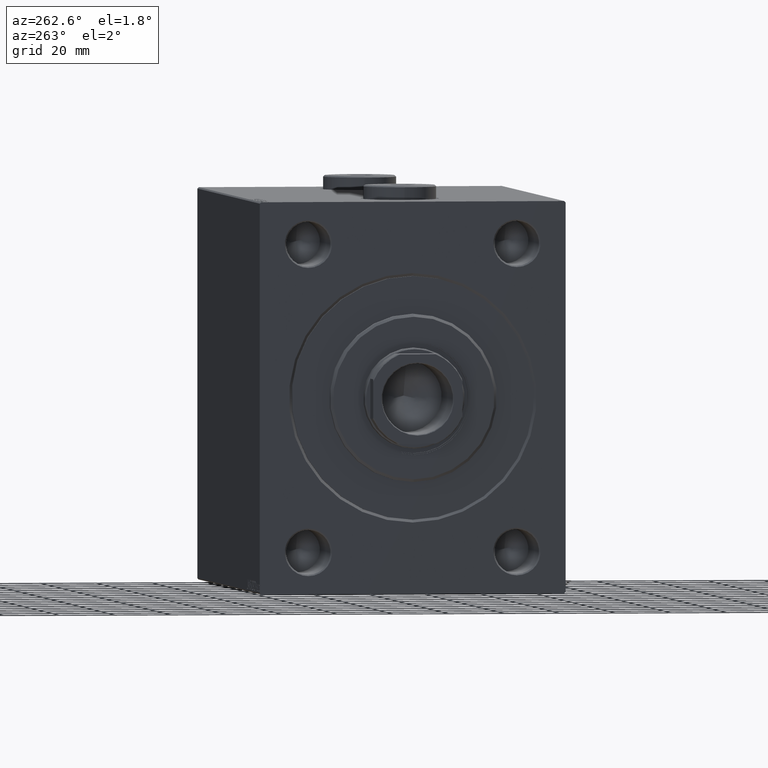
[diagram: clean part render]
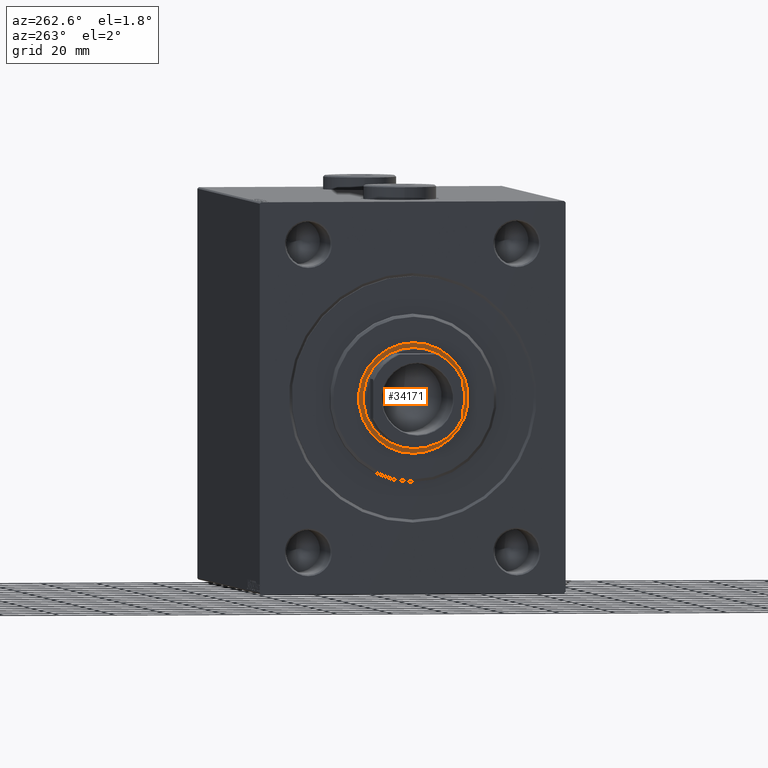
[diagram: same view with one face highlighted and labeled with its STEP entity id]
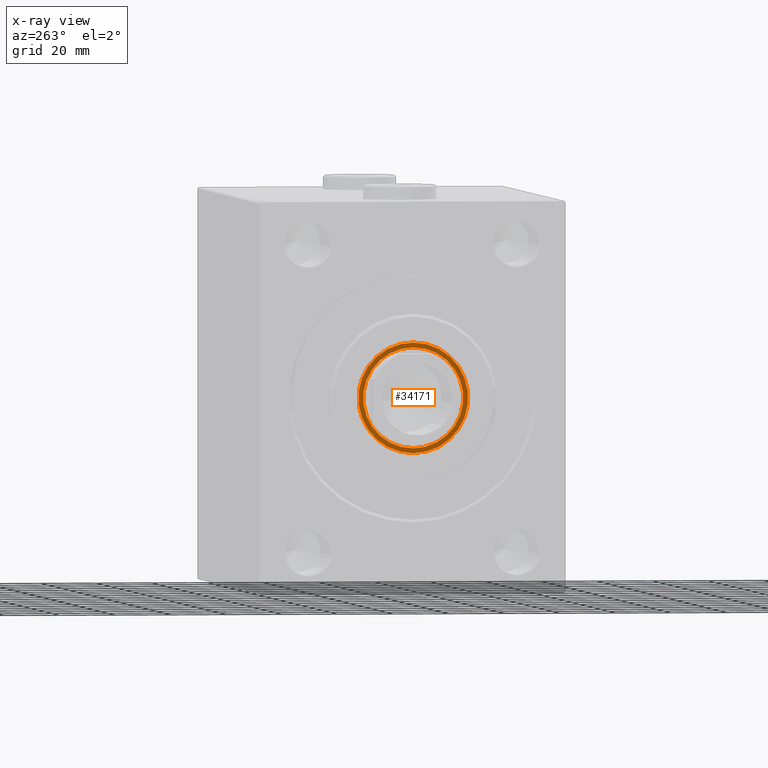
[diagram: x-ray of the same camera — body ghosted, the highlighted face saturated]
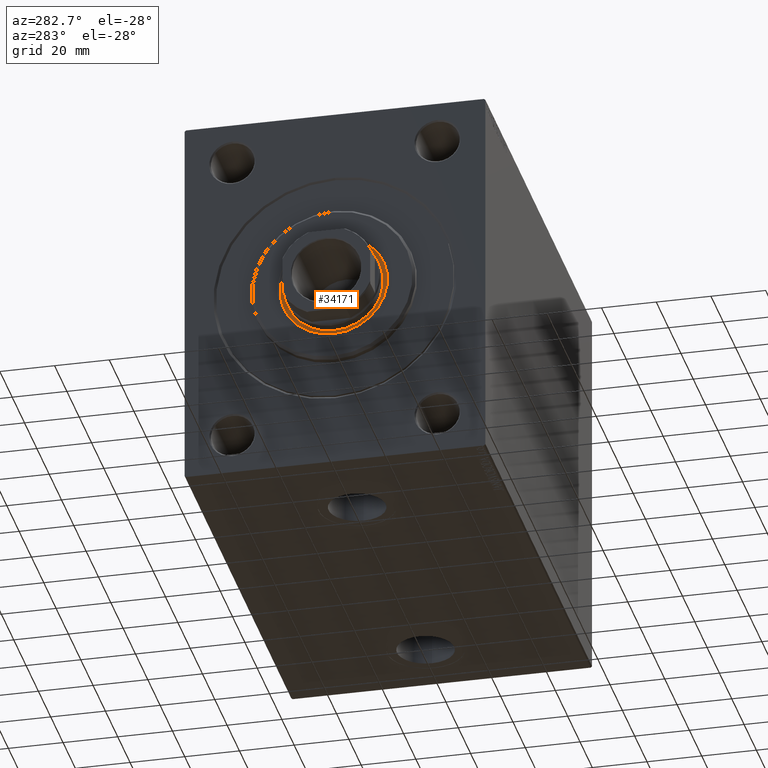
[diagram: same view with one face highlighted and labeled with its STEP entity id]
A machine part, auxiliary view. The second image highlights one B-rep face of the part: STEP entity #34171.
The next image is the same camera in x-ray: the body ghosted, the highlighted face saturated — about 0% of this face is hidden behind the body in this view.
A second angle (auxiliary view) of the same face is appended — the face is thin or edge-on in the first view.
In plain terms, the highlighted planar face has unit normal (-1, 0, 0).
Its self-contained STEP definition (entity closure, byte-faithful):
#20 = CARTESIAN_POINT ( 'NONE',  ( 1.500000000000000000, 0.000000000000000000, 19.75000000000000000 ) ) ;
#2053 = EDGE_CURVE ( 'NONE', #26962, #2516, #9770, .T. ) ;
#2516 = VERTEX_POINT ( 'NONE', #9784 ) ;
#2614 = DIRECTION ( 'NONE',  ( 0.000000000000000000, 0.000000000000000000, -1.000000000000000000 ) ) ;
#2846 = FACE_BOUND ( 'NONE', #37633, .T. ) ;
#4061 = ORIENTED_EDGE ( 'NONE', *, *, #22864, .F. ) ;
#5863 = VERTEX_POINT ( 'NONE', #10030 ) ;
#6261 = CARTESIAN_POINT ( 'NONE',  ( 1.500000000000000000, 0.000000000000000000, 0.000000000000000000 ) ) ;
#6428 = CIRCLE ( 'NONE', #18232, 18.00000000000000000 ) ;
#7237 = CIRCLE ( 'NONE', #25683, 18.00000000000000000 ) ;
#9549 = CARTESIAN_POINT ( 'NONE',  ( 1.500000000000000000, 0.000000000000000000, 0.000000000000000000 ) ) ;
#9752 = VERTEX_POINT ( 'NONE', #19839 ) ;
#9770 = CIRCLE ( 'NONE', #24519, 19.75000000000000000 ) ;
#9784 = CARTESIAN_POINT ( 'NONE',  ( 1.500000000000000000, 2.418677428316022331E-15, -19.75000000000000000 ) ) ;
#10030 = CARTESIAN_POINT ( 'NONE',  ( 1.499999999999999556, 2.204364238465235428E-15, 18.00000000000000000 ) ) ;
#11560 = DIRECTION ( 'NONE',  ( 1.000000000000000000, 0.000000000000000000, 0.000000000000000000 ) ) ;
#13257 = PLANE ( 'NONE',  #24259 ) ;
#13350 = ORIENTED_EDGE ( 'NONE', *, *, #2053, .T. ) ;
#14276 = DIRECTION ( 'NONE',  ( 1.000000000000000000, 0.000000000000000000, 0.000000000000000000 ) ) ;
#16193 = DIRECTION ( 'NONE',  ( 0.000000000000000000, 0.000000000000000000, -1.000000000000000000 ) ) ;
#16881 = DIRECTION ( 'NONE',  ( 1.000000000000000000, 0.000000000000000000, 0.000000000000000000 ) ) ;
#16938 = FACE_OUTER_BOUND ( 'NONE', #42049, .T. ) ;
#18232 = AXIS2_PLACEMENT_3D ( 'NONE', #42446, #14276, #21878 ) ;
#19839 = CARTESIAN_POINT ( 'NONE',  ( 1.499999999999999556, 0.000000000000000000, -18.00000000000000000 ) ) ;
#21049 = EDGE_CURVE ( 'NONE', #9752, #5863, #7237, .T. ) ;
#21878 = DIRECTION ( 'NONE',  ( 0.000000000000000000, 0.000000000000000000, -1.000000000000000000 ) ) ;
#21953 = DIRECTION ( 'NONE',  ( 0.000000000000000000, 0.000000000000000000, -1.000000000000000000 ) ) ;
#22188 = CARTESIAN_POINT ( 'NONE',  ( 1.500000000000000000, 0.000000000000000000, 0.000000000000000000 ) ) ;
#22864 = EDGE_CURVE ( 'NONE', #5863, #9752, #6428, .T. ) ;
#24259 = AXIS2_PLACEMENT_3D ( 'NONE', #9549, #44441, #2614 ) ;
#24519 = AXIS2_PLACEMENT_3D ( 'NONE', #6261, #16881, #16193 ) ;
#25044 = CIRCLE ( 'NONE', #42025, 19.75000000000000000 ) ;
#25683 = AXIS2_PLACEMENT_3D ( 'NONE', #38411, #38646, #31704 ) ;
#26962 = VERTEX_POINT ( 'NONE', #20 ) ;
#31704 = DIRECTION ( 'NONE',  ( 0.000000000000000000, 0.000000000000000000, -1.000000000000000000 ) ) ;
#32310 = ORIENTED_EDGE ( 'NONE', *, *, #40285, .T. ) ;
#34171 = ADVANCED_FACE ( 'NONE', ( #2846, #16938 ), #13257, .T. ) ;
#36403 = ORIENTED_EDGE ( 'NONE', *, *, #21049, .F. ) ;
#37633 = EDGE_LOOP ( 'NONE', ( #36403, #4061 ) ) ;
#38411 = CARTESIAN_POINT ( 'NONE',  ( 1.499999999999999556, 0.000000000000000000, 0.000000000000000000 ) ) ;
#38646 = DIRECTION ( 'NONE',  ( 1.000000000000000000, 0.000000000000000000, 0.000000000000000000 ) ) ;
#40285 = EDGE_CURVE ( 'NONE', #2516, #26962, #25044, .T. ) ;
#42025 = AXIS2_PLACEMENT_3D ( 'NONE', #22188, #11560, #21953 ) ;
#42049 = EDGE_LOOP ( 'NONE', ( #13350, #32310 ) ) ;
#42446 = CARTESIAN_POINT ( 'NONE',  ( 1.499999999999999556, 0.000000000000000000, 0.000000000000000000 ) ) ;
#44441 = DIRECTION ( 'NONE',  ( 1.000000000000000000, 0.000000000000000000, 0.000000000000000000 ) ) ;